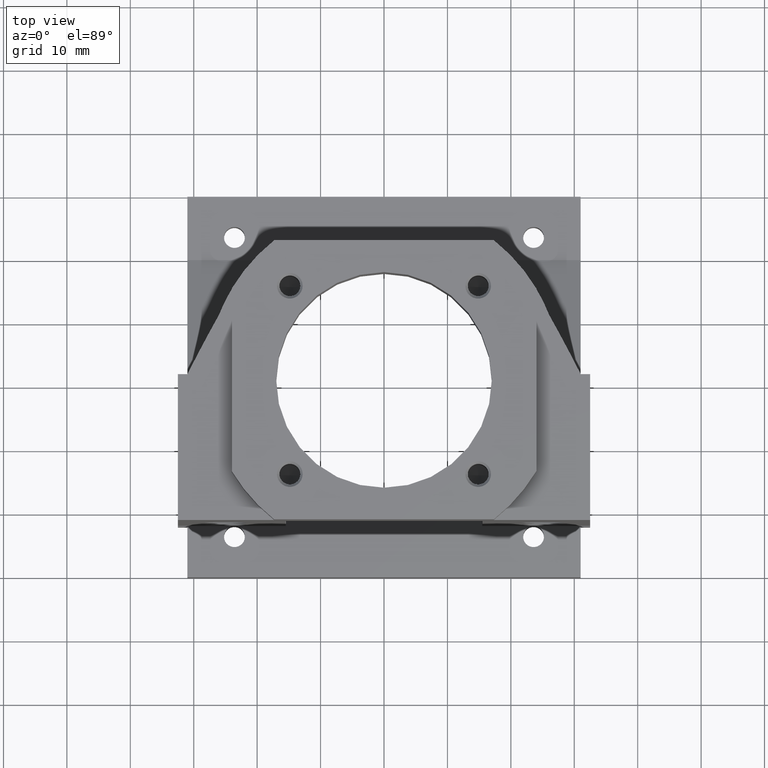
[diagram: clean part render]
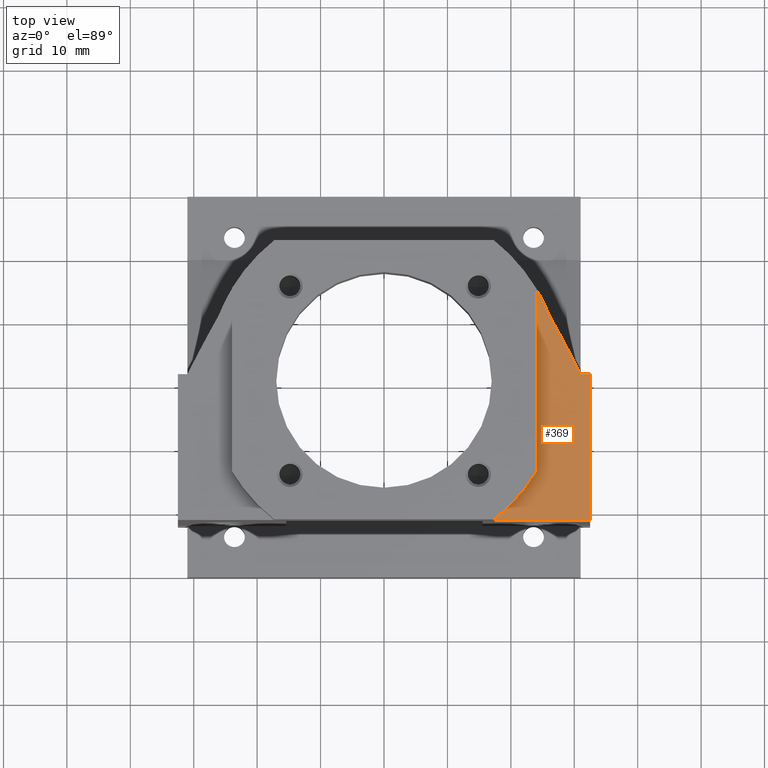
[diagram: same view with one face highlighted and labeled with its STEP entity id]
A machine part, top view. The second image highlights one B-rep face of the part: STEP entity #369.
In plain terms, the highlighted planar face has unit normal (-0, 0, 1).
Its self-contained STEP definition (entity closure, byte-faithful):
#114 = EDGE_CURVE ( 'NONE', #811, #765, #3096, .T. ) ;
#117 = EDGE_CURVE ( 'NONE', #743, #811, #3161, .T. ) ;
#118 = EDGE_CURVE ( 'NONE', #765, #662, #3126, .T. ) ;
#119 = EDGE_CURVE ( 'NONE', #739, #662, #3162, .T. ) ;
#120 = EDGE_CURVE ( 'NONE', #739, #770, #3093, .T. ) ;
#121 = EDGE_CURVE ( 'NONE', #733, #770, #3163, .T. ) ;
#122 = EDGE_CURVE ( 'NONE', #743, #733, #3164, .T. ) ;
#369 = ADVANCED_FACE ( 'NONE', ( #3383 ), #2474, .T. ) ;
#662 = VERTEX_POINT ( 'NONE', #2676 ) ;
#733 = VERTEX_POINT ( 'NONE', #2596 ) ;
#739 = VERTEX_POINT ( 'NONE', #2589 ) ;
#743 = VERTEX_POINT ( 'NONE', #2581 ) ;
#765 = VERTEX_POINT ( 'NONE', #2561 ) ;
#770 = VERTEX_POINT ( 'NONE', #2553 ) ;
#811 = VERTEX_POINT ( 'NONE', #2505 ) ;
#1476 = EDGE_LOOP ( 'NONE', ( #3157, #3155, #3156, #3154, #3153, #3152, #3151 ) ) ;
#1542 = CARTESIAN_POINT ( 'NONE',  ( -192.1282370320480800, -111.7554426135172700, 64.00000000000000000 ) ) ;
#1591 = DIRECTION ( 'NONE',  ( -0.0000000000000000000, 0.0000000000000000000, 1.000000000000000000 ) ) ;
#1612 = DIRECTION ( 'NONE',  ( -1.000000000000000000, 0.0000000000000000000, 0.0000000000000000000 ) ) ;
#1621 = DIRECTION ( 'NONE',  ( 1.508455196501570900E-016, -1.000000000000000000, 0.0000000000000000000 ) ) ;
#1653 = DIRECTION ( 'NONE',  ( -1.000000000000000000, -1.156482317317871500E-016, -0.0000000000000000000 ) ) ;
#1666 = CARTESIAN_POINT ( 'NONE',  ( 32.49999999999999300, 0.9999999999999943400, 64.00000000000000000 ) ) ;
#1727 = DIRECTION ( 'NONE',  ( 0.0000000000000000000, -0.0000000000000000000, -1.000000000000000000 ) ) ;
#1761 = CARTESIAN_POINT ( 'NONE',  ( 32.49999999999999300, -22.00000000000001400, 64.00000000000000000 ) ) ;
#1822 = DIRECTION ( 'NONE',  ( -1.000000000000000000, 0.0000000000000000000, 0.0000000000000000000 ) ) ;
#1828 = DIRECTION ( 'NONE',  ( -0.0000000000000000000, 0.0000000000000000000, 1.000000000000000000 ) ) ;
#1838 = CARTESIAN_POINT ( 'NONE',  ( 0.0000000000000000000, 0.0000000000000000000, 64.00000000000000000 ) ) ;
#1841 = DIRECTION ( 'NONE',  ( -6.846821127225644900E-017, 1.000000000000000000, -0.0000000000000000000 ) ) ;
#1887 = CARTESIAN_POINT ( 'NONE',  ( 32.49999999999999300, 0.9999999999999943400, 64.00000000000000000 ) ) ;
#1997 = CARTESIAN_POINT ( 'NONE',  ( 24.00000000000000700, 50.67237609228220000, 64.00000000000000000 ) ) ;
#2055 = DIRECTION ( 'NONE',  ( 1.000000000000000000, 0.0000000000000000000, 0.0000000000000000000 ) ) ;
#2057 = CARTESIAN_POINT ( 'NONE',  ( 0.0000000000000000000, 0.0000000000000000000, 64.00000000000000000 ) ) ;
#2098 = DIRECTION ( 'NONE',  ( -1.000000000000000000, -1.156482317317871500E-016, -0.0000000000000000000 ) ) ;
#2462 = DIRECTION ( 'NONE',  ( 1.000000000000000000, 0.0000000000000000000, 0.0000000000000000000 ) ) ;
#2466 = DIRECTION ( 'NONE',  ( -0.0000000000000000000, 0.0000000000000000000, 1.000000000000000000 ) ) ;
#2472 = CARTESIAN_POINT ( 'NONE',  ( -31.00000000000000700, -30.00000000000001400, 64.00000000000000000 ) ) ;
#2474 = PLANE ( 'NONE',  #3695 ) ;
#2505 = CARTESIAN_POINT ( 'NONE',  ( 31.00000000000001400, 0.9999999999999940000, 64.00000000000000000 ) ) ;
#2553 = CARTESIAN_POINT ( 'NONE',  ( 17.32050807568876000, -22.00000000000001400, 64.00000000000000000 ) ) ;
#2561 = CARTESIAN_POINT ( 'NONE',  ( 25.99999999999996800, 10.39230484541324500, 64.00000000000000000 ) ) ;
#2581 = CARTESIAN_POINT ( 'NONE',  ( 32.49999999999999300, 0.9999999999999943400, 64.00000000000000000 ) ) ;
#2589 = CARTESIAN_POINT ( 'NONE',  ( 24.00000000000001100, -14.42220510185593300, 64.00000000000000000 ) ) ;
#2596 = CARTESIAN_POINT ( 'NONE',  ( 32.49999999999999300, -22.00000000000001400, 64.00000000000000000 ) ) ;
#2676 = CARTESIAN_POINT ( 'NONE',  ( 24.00000000000001100, 14.42220510185594600, 64.00000000000000000 ) ) ;
#3093 = CIRCLE ( 'NONE', #3105, 28.00000000000000000 ) ;
#3094 = AXIS2_PLACEMENT_3D ( 'NONE', #1838, #1591, #1612 ) ;
#3096 = CIRCLE ( 'NONE', #3115, 250.0000000000000000 ) ;
#3100 = VECTOR ( 'NONE', #1841, 1000.000000000000000 ) ;
#3105 = AXIS2_PLACEMENT_3D ( 'NONE', #2057, #1727, #2055 ) ;
#3107 = VECTOR ( 'NONE', #2098, 1000.000000000000000 ) ;
#3115 = AXIS2_PLACEMENT_3D ( 'NONE', #1542, #1828, #1822 ) ;
#3121 = VECTOR ( 'NONE', #1621, 1000.000000000000000 ) ;
#3125 = VECTOR ( 'NONE', #1653, 1000.000000000000000 ) ;
#3126 = CIRCLE ( 'NONE', #3094, 28.00000000000000400 ) ;
#3151 = ORIENTED_EDGE ( 'NONE', *, *, #122, .F. ) ;
#3152 = ORIENTED_EDGE ( 'NONE', *, *, #121, .F. ) ;
#3153 = ORIENTED_EDGE ( 'NONE', *, *, #120, .T. ) ;
#3154 = ORIENTED_EDGE ( 'NONE', *, *, #119, .F. ) ;
#3155 = ORIENTED_EDGE ( 'NONE', *, *, #114, .T. ) ;
#3156 = ORIENTED_EDGE ( 'NONE', *, *, #118, .T. ) ;
#3157 = ORIENTED_EDGE ( 'NONE', *, *, #117, .T. ) ;
#3161 = LINE ( 'NONE', #1666, #3107 ) ;
#3162 = LINE ( 'NONE', #1997, #3100 ) ;
#3163 = LINE ( 'NONE', #1761, #3125 ) ;
#3164 = LINE ( 'NONE', #1887, #3121 ) ;
#3383 = FACE_OUTER_BOUND ( 'NONE', #1476, .T. ) ;
#3695 = AXIS2_PLACEMENT_3D ( 'NONE', #2472, #2466, #2462 ) ;